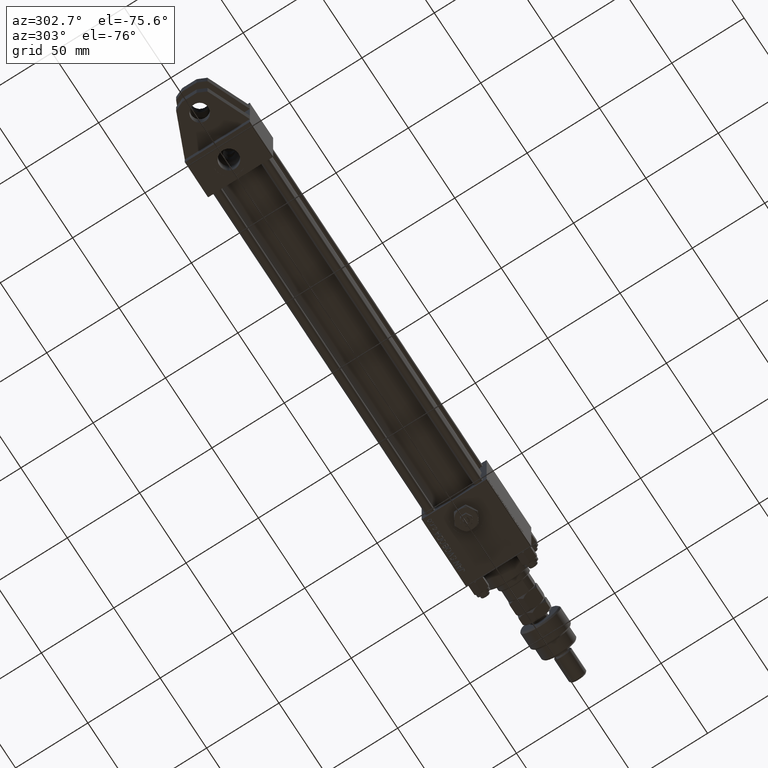
[diagram: clean part render]
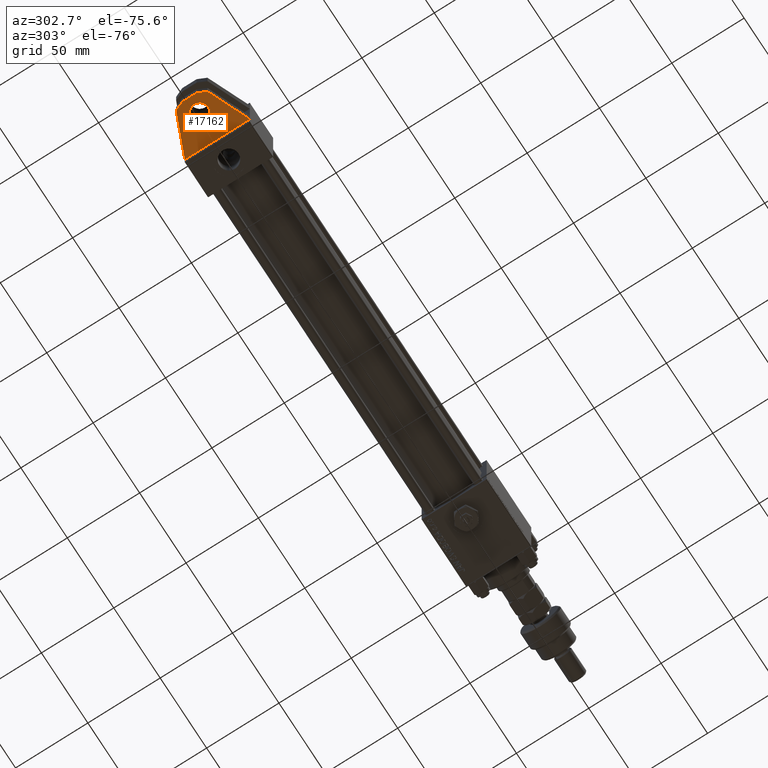
[diagram: same view with one face highlighted and labeled with its STEP entity id]
A machine part, auxiliary view. The second image highlights one B-rep face of the part: STEP entity #17162.
In plain terms, the highlighted planar face has unit normal (0, 0, -1).
Its self-contained STEP definition (entity closure, byte-faithful):
#2649 = DIRECTION ( 'NONE',  ( 0.000000000000000000, 0.000000000000000000, 1.000000000000000000 ) ) ;
#3047 = AXIS2_PLACEMENT_3D ( 'NONE', #47620, #13449, #27697 ) ;
#3646 = CARTESIAN_POINT ( 'NONE',  ( -27.31637403794659136, 16.00000000000000000, -10.75505444768274543 ) ) ;
#3817 = VECTOR ( 'NONE', #40974, 1000.000000000000000 ) ;
#4249 = CARTESIAN_POINT ( 'NONE',  ( 0.000000000000000000, 16.00000000000000000, 0.000000000000000000 ) ) ;
#4250 = VERTEX_POINT ( 'NONE', #20202 ) ;
#4554 = ORIENTED_EDGE ( 'NONE', *, *, #21785, .T. ) ;
#5350 = CARTESIAN_POINT ( 'NONE',  ( -27.49177119113045720, 16.00000000000000000, 10.83363422253716735 ) ) ;
#5549 = EDGE_CURVE ( 'NONE', #8662, #30302, #42248, .T. ) ;
#5628 = CARTESIAN_POINT ( 'NONE',  ( -27.31637403794659136, 16.00000000000000000, -10.75505444768274543 ) ) ;
#6488 = VERTEX_POINT ( 'NONE', #24693 ) ;
#6527 = EDGE_CURVE ( 'NONE', #30302, #22142, #12283, .T. ) ;
#7279 = VECTOR ( 'NONE', #16867, 1000.000000000000227 ) ;
#8662 = VERTEX_POINT ( 'NONE', #39928 ) ;
#8832 = EDGE_CURVE ( 'NONE', #6488, #52338, #32485, .T. ) ;
#9359 = AXIS2_PLACEMENT_3D ( 'NONE', #4249, #50561, #13068 ) ;
#9373 = VECTOR ( 'NONE', #37362, 1000.000000000000000 ) ;
#10110 = CARTESIAN_POINT ( 'NONE',  ( -19.00000000000000000, 16.00000000000000000, -3.469446951953614189E-15 ) ) ;
#10297 = LINE ( 'NONE', #5350, #17932 ) ;
#10481 = ORIENTED_EDGE ( 'NONE', *, *, #5549, .T. ) ;
#10924 = DIRECTION ( 'NONE',  ( 0.000000000000000000, 1.000000000000000000, 0.000000000000000000 ) ) ;
#12283 = LINE ( 'NONE', #45379, #3817 ) ;
#13068 = DIRECTION ( 'NONE',  ( 0.000000000000000000, -0.000000000000000000, 1.000000000000000000 ) ) ;
#13361 = CARTESIAN_POINT ( 'NONE',  ( 0.000000000000000000, 16.00000000000000000, 22.50000000000000355 ) ) ;
#13449 = DIRECTION ( 'NONE',  ( 0.000000000000000000, 1.000000000000000000, 0.000000000000000000 ) ) ;
#16042 = ORIENTED_EDGE ( 'NONE', *, *, #6527, .T. ) ;
#16867 = DIRECTION ( 'NONE',  ( -0.9186825547302631678, -0.000000000000000000, 0.3949966628141013958 ) ) ;
#16918 = FACE_BOUND ( 'NONE', #44723, .T. ) ;
#17162 = ADVANCED_FACE ( 'NONE', ( #38170, #16918 ), #37366, .T. ) ;
#17932 = VECTOR ( 'NONE', #48346, 999.9999999999998863 ) ;
#18179 = LINE ( 'NONE', #43815, #38659 ) ;
#18357 = CARTESIAN_POINT ( 'NONE',  ( -27.49177119113045720, 16.00000000000000000, 10.83363422253716735 ) ) ;
#20202 = CARTESIAN_POINT ( 'NONE',  ( -19.00000000000000000, 16.00000000000000000, 5.999999999999997335 ) ) ;
#20255 = LINE ( 'NONE', #37089, #9373 ) ;
#20625 = VECTOR ( 'NONE', #49284, 1000.000000000000000 ) ;
#21785 = EDGE_CURVE ( 'NONE', #22142, #6488, #18179, .T. ) ;
#22142 = VERTEX_POINT ( 'NONE', #24425 ) ;
#24425 = CARTESIAN_POINT ( 'NONE',  ( -30.00000000000000000, 16.00000000000000000, -5.000000000000003553 ) ) ;
#24693 = CARTESIAN_POINT ( 'NONE',  ( -30.00000000000000000, 16.00000000000000000, 4.999999999999996447 ) ) ;
#25172 = EDGE_LOOP ( 'NONE', ( #51103, #38575, #51066, #10481, #16042, #4554 ) ) ;
#26623 = EDGE_CURVE ( 'NONE', #38141, #4250, #39890, .T. ) ;
#26828 = CIRCLE ( 'NONE', #3047, 6.000000000000000888 ) ;
#27697 = DIRECTION ( 'NONE',  ( 0.000000000000000000, 0.000000000000000000, 1.000000000000000000 ) ) ;
#29315 = EDGE_CURVE ( 'NONE', #52338, #32414, #10297, .T. ) ;
#30302 = VERTEX_POINT ( 'NONE', #5628 ) ;
#31123 = EDGE_CURVE ( 'NONE', #4250, #38141, #26828, .T. ) ;
#31176 = ORIENTED_EDGE ( 'NONE', *, *, #31123, .F. ) ;
#32414 = VERTEX_POINT ( 'NONE', #13361 ) ;
#32485 = LINE ( 'NONE', #44881, #20625 ) ;
#35416 = EDGE_CURVE ( 'NONE', #32414, #8662, #20255, .T. ) ;
#35427 = ORIENTED_EDGE ( 'NONE', *, *, #26623, .F. ) ;
#37089 = CARTESIAN_POINT ( 'NONE',  ( 0.000000000000000000, 16.00000000000000000, 22.50000000000000000 ) ) ;
#37287 = CARTESIAN_POINT ( 'NONE',  ( -19.00000000000000000, 16.00000000000000000, -6.000000000000004441 ) ) ;
#37362 = DIRECTION ( 'NONE',  ( 0.000000000000000000, 0.000000000000000000, -1.000000000000000000 ) ) ;
#37366 = PLANE ( 'NONE',  #9359 ) ;
#38141 = VERTEX_POINT ( 'NONE', #37287 ) ;
#38170 = FACE_OUTER_BOUND ( 'NONE', #25172, .T. ) ;
#38575 = ORIENTED_EDGE ( 'NONE', *, *, #29315, .T. ) ;
#38659 = VECTOR ( 'NONE', #47673, 1000.000000000000000 ) ;
#39890 = CIRCLE ( 'NONE', #45161, 6.000000000000000888 ) ;
#39928 = CARTESIAN_POINT ( 'NONE',  ( 0.000000000000000000, 16.00000000000000000, -22.50000000000000711 ) ) ;
#40974 = DIRECTION ( 'NONE',  ( -0.4226182617406942232, -0.000000000000000000, 0.9063077870366523792 ) ) ;
#42248 = LINE ( 'NONE', #3646, #7279 ) ;
#43815 = CARTESIAN_POINT ( 'NONE',  ( -30.00000000000000000, 16.00000000000000000, -5.000000000000003553 ) ) ;
#44723 = EDGE_LOOP ( 'NONE', ( #35427, #31176 ) ) ;
#44881 = CARTESIAN_POINT ( 'NONE',  ( -30.00000000000000000, 16.00000000000000000, 4.999999999999996447 ) ) ;
#45161 = AXIS2_PLACEMENT_3D ( 'NONE', #10110, #10924, #2649 ) ;
#45379 = CARTESIAN_POINT ( 'NONE',  ( -30.00000000000000000, 16.00000000000000000, -5.000000000000003553 ) ) ;
#47620 = CARTESIAN_POINT ( 'NONE',  ( -19.00000000000000000, 16.00000000000000000, -3.469446951953614189E-15 ) ) ;
#47673 = DIRECTION ( 'NONE',  ( 0.000000000000000000, 0.000000000000000000, 1.000000000000000000 ) ) ;
#48346 = DIRECTION ( 'NONE',  ( 0.9205433724492674274, 0.000000000000000000, 0.3906403709804319724 ) ) ;
#49284 = DIRECTION ( 'NONE',  ( 0.3949966628141011737, 0.000000000000000000, 0.9186825547302632788 ) ) ;
#50561 = DIRECTION ( 'NONE',  ( -0.000000000000000000, 1.000000000000000000, 0.000000000000000000 ) ) ;
#51066 = ORIENTED_EDGE ( 'NONE', *, *, #35416, .T. ) ;
#51103 = ORIENTED_EDGE ( 'NONE', *, *, #8832, .T. ) ;
#52338 = VERTEX_POINT ( 'NONE', #18357 ) ;